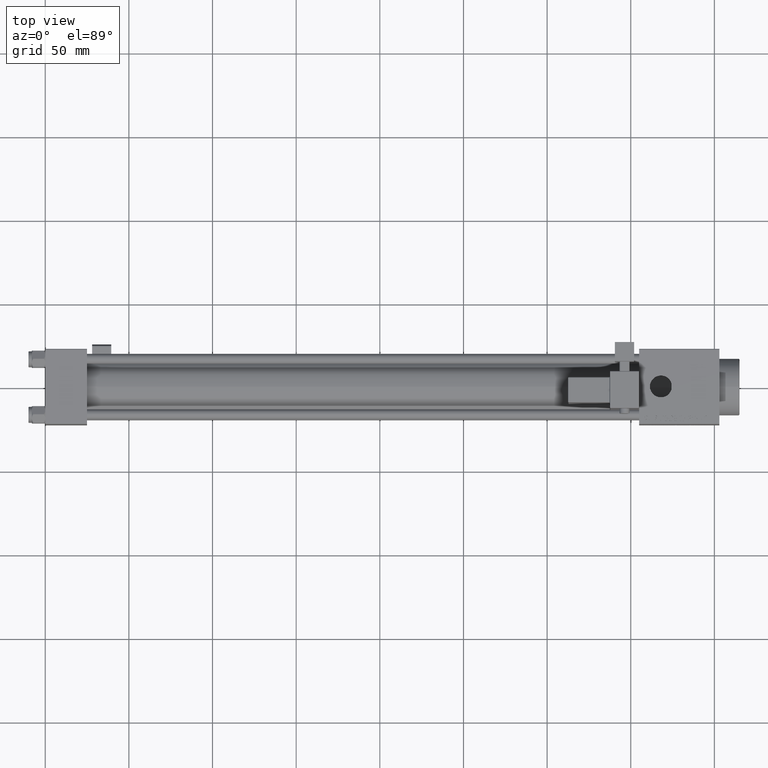
[diagram: clean part render]
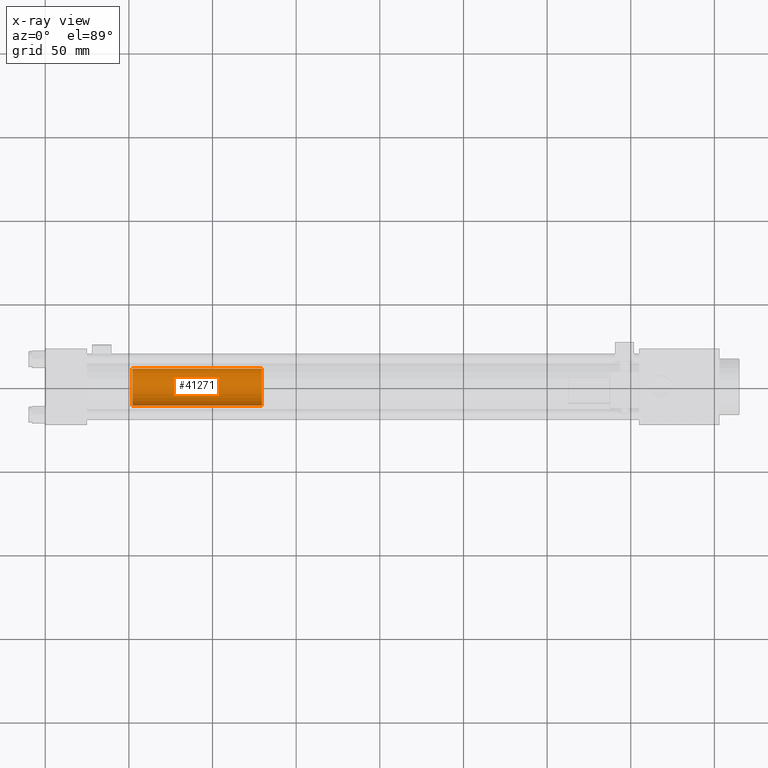
[diagram: x-ray — body ghosted, one internal face saturated and labeled with its STEP entity id]
A machine part, top view, then the same camera in x-ray: the body is ghosted and one INTERNAL B-rep face — a face not visible from any outside direction — is saturated and labeled: STEP entity #41271.
In plain terms, the highlighted cylindrical surface (edge-blend (fillet) strip) has radius 11 mm, axis along (-1, 0, 0).
Its self-contained STEP definition (entity closure, byte-faithful):
#1188 = AXIS2_PLACEMENT_3D ( 'NONE', #31066, #50911, #18983 ) ;
#1474 = CARTESIAN_POINT ( 'NONE',  ( -11.00000000000000000, 0.000000000000000000, 27.00000000000000000 ) ) ;
#3605 = ORIENTED_EDGE ( 'NONE', *, *, #48805, .T. ) ;
#6130 = FACE_OUTER_BOUND ( 'NONE', #8027, .T. ) ;
#8027 = EDGE_LOOP ( 'NONE', ( #24546, #25777, #3605, #44231 ) ) ;
#9819 = DIRECTION ( 'NONE',  ( 1.000000000000000000, 0.000000000000000000, 0.000000000000000000 ) ) ;
#13009 = LINE ( 'NONE', #40658, #13061 ) ;
#13061 = VECTOR ( 'NONE', #24314, 1000.000000000000000 ) ;
#15172 = CIRCLE ( 'NONE', #18579, 11.00000000000000000 ) ;
#17853 = DIRECTION ( 'NONE',  ( 0.000000000000000000, 0.000000000000000000, 1.000000000000000000 ) ) ;
#18173 = CYLINDRICAL_SURFACE ( 'NONE', #1188, 11.00000000000000000 ) ;
#18579 = AXIS2_PLACEMENT_3D ( 'NONE', #51389, #17853, #9819 ) ;
#18983 = DIRECTION ( 'NONE',  ( -1.000000000000000000, 0.000000000000000000, 0.000000000000000000 ) ) ;
#19627 = CARTESIAN_POINT ( 'NONE',  ( 11.00000000000000000, 1.347111479062088405E-15, 104.5000000000000142 ) ) ;
#19855 = LINE ( 'NONE', #43754, #21143 ) ;
#21143 = VECTOR ( 'NONE', #48297, 1000.000000000000000 ) ;
#22222 = VERTEX_POINT ( 'NONE', #19627 ) ;
#22367 = DIRECTION ( 'NONE',  ( 1.000000000000000000, 0.000000000000000000, 0.000000000000000000 ) ) ;
#24314 = DIRECTION ( 'NONE',  ( -0.000000000000000000, -0.000000000000000000, -1.000000000000000000 ) ) ;
#24546 = ORIENTED_EDGE ( 'NONE', *, *, #42994, .T. ) ;
#25777 = ORIENTED_EDGE ( 'NONE', *, *, #48349, .T. ) ;
#27151 = VERTEX_POINT ( 'NONE', #40494 ) ;
#30414 = CARTESIAN_POINT ( 'NONE',  ( 0.000000000000000000, 0.000000000000000000, 104.5000000000000142 ) ) ;
#31066 = CARTESIAN_POINT ( 'NONE',  ( 0.000000000000000000, 0.000000000000000000, 105.0000000000000000 ) ) ;
#31211 = DIRECTION ( 'NONE',  ( 0.000000000000000000, 0.000000000000000000, -1.000000000000000000 ) ) ;
#36732 = VERTEX_POINT ( 'NONE', #47421 ) ;
#38241 = EDGE_CURVE ( 'NONE', #36732, #52938, #13009, .T. ) ;
#40494 = CARTESIAN_POINT ( 'NONE',  ( 11.00000000000000000, 1.347111479062088405E-15, 27.00000000000000000 ) ) ;
#40658 = CARTESIAN_POINT ( 'NONE',  ( -11.00000000000000000, 0.000000000000000000, 105.0000000000000000 ) ) ;
#41271 = ADVANCED_FACE ( 'NONE', ( #6130 ), #18173, .T. ) ;
#42994 = EDGE_CURVE ( 'NONE', #36732, #22222, #43246, .T. ) ;
#43246 = CIRCLE ( 'NONE', #50930, 11.00000000000000000 ) ;
#43754 = CARTESIAN_POINT ( 'NONE',  ( 11.00000000000000000, 1.347111479062088405E-15, 105.0000000000000000 ) ) ;
#44231 = ORIENTED_EDGE ( 'NONE', *, *, #38241, .F. ) ;
#47421 = CARTESIAN_POINT ( 'NONE',  ( -11.00000000000000000, 0.000000000000000000, 104.5000000000000142 ) ) ;
#48297 = DIRECTION ( 'NONE',  ( -0.000000000000000000, -0.000000000000000000, -1.000000000000000000 ) ) ;
#48349 = EDGE_CURVE ( 'NONE', #22222, #27151, #19855, .T. ) ;
#48805 = EDGE_CURVE ( 'NONE', #27151, #52938, #15172, .T. ) ;
#50911 = DIRECTION ( 'NONE',  ( -0.000000000000000000, -0.000000000000000000, -1.000000000000000000 ) ) ;
#50930 = AXIS2_PLACEMENT_3D ( 'NONE', #30414, #31211, #22367 ) ;
#51389 = CARTESIAN_POINT ( 'NONE',  ( 0.000000000000000000, 0.000000000000000000, 27.00000000000000000 ) ) ;
#52938 = VERTEX_POINT ( 'NONE', #1474 ) ;